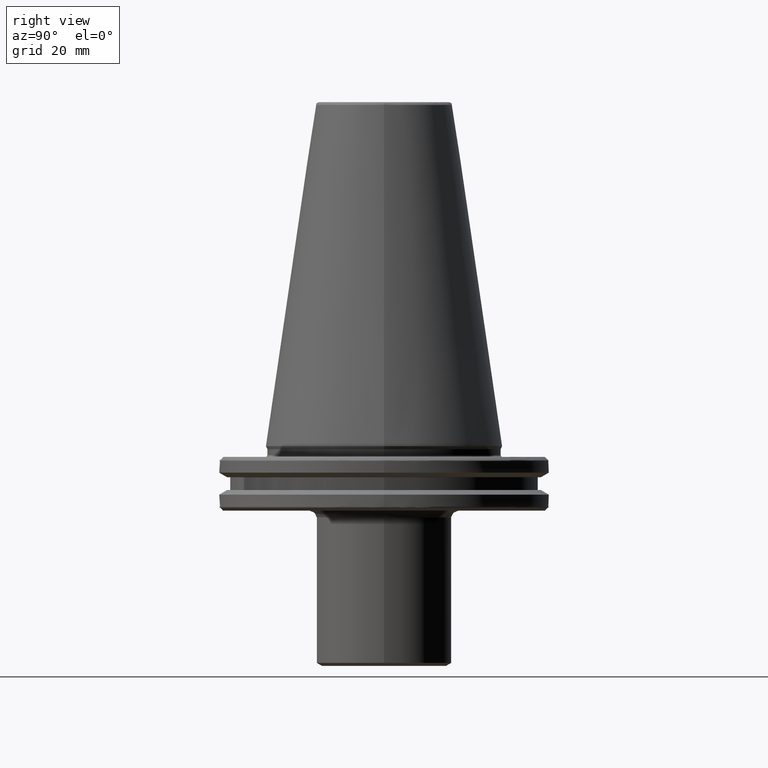
[diagram: clean part render]
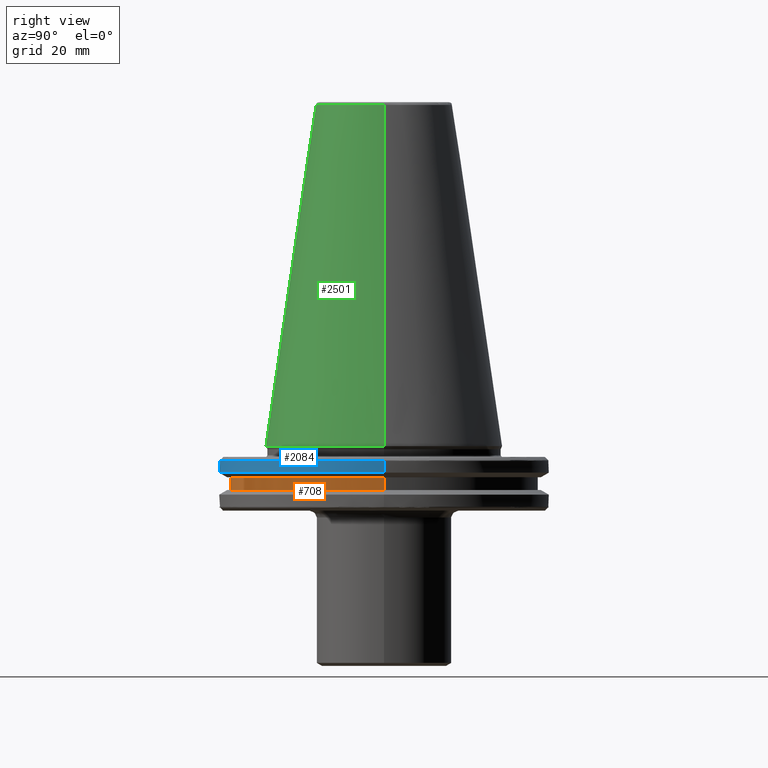
[diagram: same view with three faces highlighted in distinct colors, each labeled with its STEP entity id]
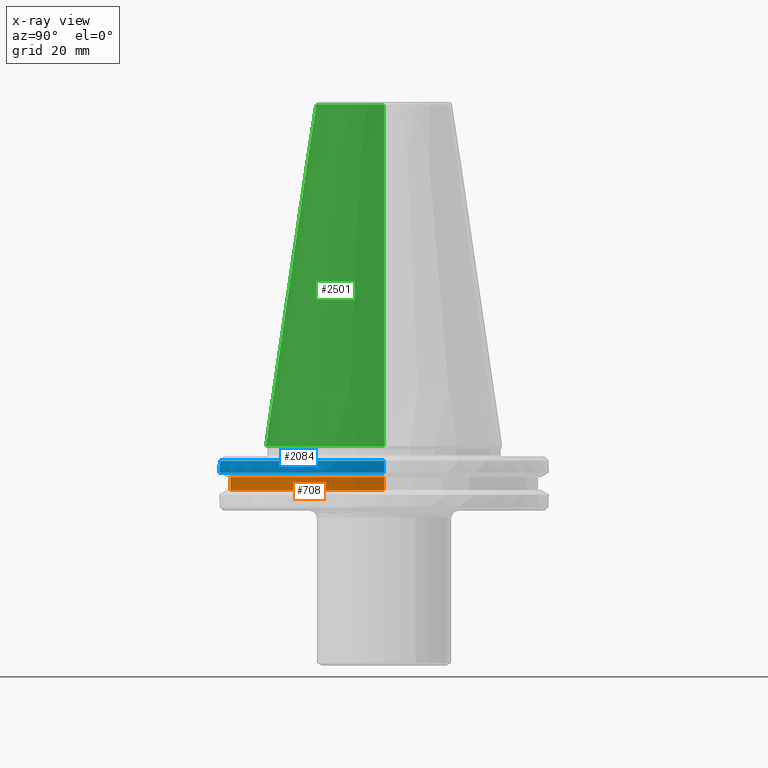
[diagram: x-ray of the same camera — body ghosted, the three highlighted faces saturated]
A machine part, right view with three faces highlighted in distinct colors.
The next image is the same camera in x-ray (body ghosted, the three faces saturated) — at least one of them is partly hidden behind the body in this view.
Their STEP definitions:

[orange] entity #708 — the highlighted cylindrical surface (partial cylindrical patch) has radius 45.5 mm, axis along (0, 0, 1).
#2 = AXIS2_PLACEMENT_3D ( 'NONE', #1852, #1810, #2771 ) ;
#88 = DIRECTION ( 'NONE',  ( 1.000000000000000000, 0.0000000000000000000, 0.0000000000000000000 ) ) ;
#89 = DIRECTION ( 'NONE',  ( -0.0000000000000000000, -0.0000000000000000000, -1.000000000000000000 ) ) ;
#92 = CARTESIAN_POINT ( 'NONE',  ( 0.0000000000000000000, 0.0000000000000000000, -9.199999999999999300 ) ) ;
#139 = VERTEX_POINT ( 'NONE', #2626 ) ;
#150 = VERTEX_POINT ( 'NONE', #2255 ) ;
#307 = DIRECTION ( 'NONE',  ( 0.0000000000000000000, 0.0000000000000000000, 1.000000000000000000 ) ) ;
#310 = DIRECTION ( 'NONE',  ( 1.000000000000000000, 0.0000000000000000000, 0.0000000000000000000 ) ) ;
#346 = CARTESIAN_POINT ( 'NONE',  ( 0.0000000000000000000, 0.0000000000000000000, 113.5216080541959500 ) ) ;
#371 = VERTEX_POINT ( 'NONE', #1117 ) ;
#418 = CIRCLE ( 'NONE', #2, 45.50000000000000000 ) ;
#498 = VECTOR ( 'NONE', #1760, 1000.000000000000000 ) ;
#531 = LINE ( 'NONE', #2168, #498 ) ;
#708 = ADVANCED_FACE ( 'NONE', ( #2307 ), #2079, .T. ) ;
#730 = LINE ( 'NONE', #2418, #2721 ) ;
#879 = EDGE_CURVE ( 'NONE', #1691, #150, #891, .T. ) ;
#891 = CIRCLE ( 'NONE', #2807, 45.50000000000000000 ) ;
#1105 = ORIENTED_EDGE ( 'NONE', *, *, #879, .T. ) ;
#1117 = CARTESIAN_POINT ( 'NONE',  ( -45.50000000000000000, 5.572142936120457100E-015, -13.00000000000001100 ) ) ;
#1120 = EDGE_CURVE ( 'NONE', #371, #139, #418, .T. ) ;
#1691 = VERTEX_POINT ( 'NONE', #2134 ) ;
#1760 = DIRECTION ( 'NONE',  ( 0.0000000000000000000, 0.0000000000000000000, 1.000000000000000000 ) ) ;
#1810 = DIRECTION ( 'NONE',  ( 0.0000000000000000000, 0.0000000000000000000, 1.000000000000000000 ) ) ;
#1852 = CARTESIAN_POINT ( 'NONE',  ( 0.0000000000000000000, 0.0000000000000000000, -13.00000000000001100 ) ) ;
#1985 = EDGE_CURVE ( 'NONE', #371, #150, #730, .T. ) ;
#2079 = CYLINDRICAL_SURFACE ( 'NONE', #2426, 45.50000000000000000 ) ;
#2113 = ORIENTED_EDGE ( 'NONE', *, *, #1120, .T. ) ;
#2134 = CARTESIAN_POINT ( 'NONE',  ( 45.50000000000000000, 0.0000000000000000000, -9.199999999999999300 ) ) ;
#2144 = ORIENTED_EDGE ( 'NONE', *, *, #1985, .F. ) ;
#2168 = CARTESIAN_POINT ( 'NONE',  ( 45.50000000000000000, 0.0000000000000000000, 113.5216080541959500 ) ) ;
#2255 = CARTESIAN_POINT ( 'NONE',  ( -45.50000000000000000, 5.572142936120457100E-015, -9.199999999999999300 ) ) ;
#2307 = FACE_OUTER_BOUND ( 'NONE', #2799, .T. ) ;
#2418 = CARTESIAN_POINT ( 'NONE',  ( -45.50000000000000000, 5.572142936120457100E-015, 113.5216080541959500 ) ) ;
#2426 = AXIS2_PLACEMENT_3D ( 'NONE', #346, #307, #310 ) ;
#2428 = ORIENTED_EDGE ( 'NONE', *, *, #2947, .T. ) ;
#2443 = DIRECTION ( 'NONE',  ( 0.0000000000000000000, 0.0000000000000000000, 1.000000000000000000 ) ) ;
#2626 = CARTESIAN_POINT ( 'NONE',  ( 45.50000000000000000, 0.0000000000000000000, -13.00000000000001100 ) ) ;
#2721 = VECTOR ( 'NONE', #2443, 1000.000000000000000 ) ;
#2771 = DIRECTION ( 'NONE',  ( 1.000000000000000000, 0.0000000000000000000, 0.0000000000000000000 ) ) ;
#2799 = EDGE_LOOP ( 'NONE', ( #2144, #2113, #2428, #1105 ) ) ;
#2807 = AXIS2_PLACEMENT_3D ( 'NONE', #92, #89, #88 ) ;
#2947 = EDGE_CURVE ( 'NONE', #139, #1691, #531, .T. ) ;

[blue] entity #2084 — the highlighted cylindrical surface (partial cylindrical patch) has radius 48.75 mm, axis along (0, 0, 1).
#6 = DIRECTION ( 'NONE',  ( 1.000000000000000000, 0.0000000000000000000, 0.0000000000000000000 ) ) ;
#11 = CARTESIAN_POINT ( 'NONE',  ( 46.87302845420869300, -13.39707817141269600, -4.365685424949236700 ) ) ;
#69 = EDGE_LOOP ( 'NONE', ( #247, #2813, #2708, #2181, #243, #2073 ) ) ;
#177 = VECTOR ( 'NONE', #2520, 1000.000000000000000 ) ;
#243 = ORIENTED_EDGE ( 'NONE', *, *, #2888, .F. ) ;
#247 = ORIENTED_EDGE ( 'NONE', *, *, #2447, .F. ) ;
#255 = EDGE_CURVE ( 'NONE', #2257, #963, #2347, .T. ) ;
#266 = DIRECTION ( 'NONE',  ( -1.000000000000000000, 0.0000000000000000000, 0.0000000000000000000 ) ) ;
#269 = DIRECTION ( 'NONE',  ( -0.0000000000000000000, -0.0000000000000000000, -1.000000000000000000 ) ) ;
#271 = CARTESIAN_POINT ( 'NONE',  ( 0.0000000000000000000, 0.0000000000000000000, -4.365685424949236700 ) ) ;
#347 = EDGE_CURVE ( 'NONE', #1919, #2257, #597, .T. ) ;
#364 = CARTESIAN_POINT ( 'NONE',  ( -48.75000000000000000, 5.970153145843347100E-015, 113.5216080541959500 ) ) ;
#400 = CARTESIAN_POINT ( 'NONE',  ( 0.0000000000000000000, 0.0000000000000000000, 113.5216080541959500 ) ) ;
#453 = AXIS2_PLACEMENT_3D ( 'NONE', #1152, #1149, #1146 ) ;
#501 = CARTESIAN_POINT ( 'NONE',  ( -48.75000000000000000, 5.970153145843347100E-015, -7.852404735808352000 ) ) ;
#507 = AXIS2_PLACEMENT_3D ( 'NONE', #271, #269, #266 ) ;
#597 = CIRCLE ( 'NONE', #453, 48.75000000000000000 ) ;
#683 = CIRCLE ( 'NONE', #2199, 48.75000000000000000 ) ;
#712 = EDGE_CURVE ( 'NONE', #963, #938, #1363, .T. ) ;
#843 = FACE_OUTER_BOUND ( 'NONE', #69, .T. ) ;
#926 = CARTESIAN_POINT ( 'NONE',  ( 0.0000000000000000000, 0.0000000000000000000, -4.365685424949240300 ) ) ;
#938 = VERTEX_POINT ( 'NONE', #11 ) ;
#963 = VERTEX_POINT ( 'NONE', #1258 ) ;
#1001 = AXIS2_PLACEMENT_3D ( 'NONE', #400, #1655, #6 ) ;
#1004 = EDGE_CURVE ( 'NONE', #2010, #1666, #683, .T. ) ;
#1065 = CYLINDRICAL_SURFACE ( 'NONE', #1001, 48.75000000000000000 ) ;
#1146 = DIRECTION ( 'NONE',  ( 1.000000000000000000, 0.0000000000000000000, 0.0000000000000000000 ) ) ;
#1149 = DIRECTION ( 'NONE',  ( 0.0000000000000000000, 0.0000000000000000000, 1.000000000000000000 ) ) ;
#1152 = CARTESIAN_POINT ( 'NONE',  ( 0.0000000000000000000, 0.0000000000000000000, -7.852404735808352000 ) ) ;
#1258 = CARTESIAN_POINT ( 'NONE',  ( 48.75000000000000000, 0.0000000000000000000, -4.365685424949236700 ) ) ;
#1317 = CARTESIAN_POINT ( 'NONE',  ( 0.0000000000000000000, 0.0000000000000000000, -4.365685424949236700 ) ) ;
#1361 = LINE ( 'NONE', #364, #177 ) ;
#1363 = CIRCLE ( 'NONE', #507, 48.75000000000000000 ) ;
#1576 = DIRECTION ( 'NONE',  ( 0.0000000000000000000, 0.0000000000000000000, 1.000000000000000000 ) ) ;
#1655 = DIRECTION ( 'NONE',  ( 0.0000000000000000000, 0.0000000000000000000, 1.000000000000000000 ) ) ;
#1666 = VERTEX_POINT ( 'NONE', #1888 ) ;
#1807 = AXIS2_PLACEMENT_3D ( 'NONE', #926, #2903, #3039 ) ;
#1888 = CARTESIAN_POINT ( 'NONE',  ( -48.75000000000000000, 5.970153145843347100E-015, -4.365685424949236700 ) ) ;
#1919 = VERTEX_POINT ( 'NONE', #501 ) ;
#2010 = VERTEX_POINT ( 'NONE', #2370 ) ;
#2073 = ORIENTED_EDGE ( 'NONE', *, *, #1004, .T. ) ;
#2081 = CIRCLE ( 'NONE', #1807, 48.75000000000000000 ) ;
#2084 = ADVANCED_FACE ( 'NONE', ( #843 ), #1065, .T. ) ;
#2181 = ORIENTED_EDGE ( 'NONE', *, *, #712, .T. ) ;
#2199 = AXIS2_PLACEMENT_3D ( 'NONE', #1317, #2827, #2310 ) ;
#2257 = VERTEX_POINT ( 'NONE', #2902 ) ;
#2310 = DIRECTION ( 'NONE',  ( -1.000000000000000000, 0.0000000000000000000, 0.0000000000000000000 ) ) ;
#2347 = LINE ( 'NONE', #2757, #2875 ) ;
#2370 = CARTESIAN_POINT ( 'NONE',  ( -46.83796378645139000, -13.51915856623735300, -4.365685424949236700 ) ) ;
#2447 = EDGE_CURVE ( 'NONE', #1919, #1666, #1361, .T. ) ;
#2520 = DIRECTION ( 'NONE',  ( 0.0000000000000000000, 0.0000000000000000000, 1.000000000000000000 ) ) ;
#2708 = ORIENTED_EDGE ( 'NONE', *, *, #255, .T. ) ;
#2757 = CARTESIAN_POINT ( 'NONE',  ( 48.75000000000000000, 0.0000000000000000000, 113.5216080541959500 ) ) ;
#2813 = ORIENTED_EDGE ( 'NONE', *, *, #347, .T. ) ;
#2827 = DIRECTION ( 'NONE',  ( -0.0000000000000000000, -0.0000000000000000000, -1.000000000000000000 ) ) ;
#2875 = VECTOR ( 'NONE', #1576, 1000.000000000000000 ) ;
#2888 = EDGE_CURVE ( 'NONE', #2010, #938, #2081, .T. ) ;
#2902 = CARTESIAN_POINT ( 'NONE',  ( 48.75000000000000000, 0.0000000000000000000, -7.852404735808352000 ) ) ;
#2903 = DIRECTION ( 'NONE',  ( 0.0000000000000000000, 0.0000000000000000000, 1.000000000000000000 ) ) ;
#3039 = DIRECTION ( 'NONE',  ( 1.000000000000000000, 0.0000000000000000000, 0.0000000000000000000 ) ) ;

[green] entity #2501 — the highlighted conical surface has half-angle 8.297 deg.
#33 = EDGE_CURVE ( 'NONE', #520, #2191, #686, .T. ) ;
#259 = ORIENTED_EDGE ( 'NONE', *, *, #286, .T. ) ;
#286 = EDGE_CURVE ( 'NONE', #2788, #2191, #836, .T. ) ;
#489 = EDGE_CURVE ( 'NONE', #579, #2788, #1198, .T. ) ;
#515 = CARTESIAN_POINT ( 'NONE',  ( -20.21110778703758000, 0.0000000000000000000, 100.8943082272673000 ) ) ;
#520 = VERTEX_POINT ( 'NONE', #526 ) ;
#526 = CARTESIAN_POINT ( 'NONE',  ( 20.21110778703758000, 3.376112895941951000E-015, 100.8943082272673000 ) ) ;
#579 = VERTEX_POINT ( 'NONE', #515 ) ;
#584 = CARTESIAN_POINT ( 'NONE',  ( -34.92499999999999700, 0.0000000000000000000, -1.387778780781445700E-014 ) ) ;
#678 = ORIENTED_EDGE ( 'NONE', *, *, #33, .F. ) ;
#686 = LINE ( 'NONE', #2101, #1478 ) ;
#695 = ORIENTED_EDGE ( 'NONE', *, *, #489, .T. ) ;
#751 = CARTESIAN_POINT ( 'NONE',  ( -34.92500000000000400, 4.277078946022131700E-015, 0.0000000000000000000 ) ) ;
#782 = CARTESIAN_POINT ( 'NONE',  ( 34.92500000000000400, 0.0000000000000000000, 0.0000000000000000000 ) ) ;
#836 = CIRCLE ( 'NONE', #2455, 34.92499999999999700 ) ;
#848 = CIRCLE ( 'NONE', #1319, 20.21110778703758000 ) ;
#854 = VECTOR ( 'NONE', #982, 1000.000000000000000 ) ;
#881 = CARTESIAN_POINT ( 'NONE',  ( 0.0000000000000000000, 0.0000000000000000000, 100.8943082272673000 ) ) ;
#889 = CARTESIAN_POINT ( 'NONE',  ( 0.0000000000000000000, 0.0000000000000000000, -1.387778780781445700E-014 ) ) ;
#982 = DIRECTION ( 'NONE',  ( -0.1443082272673069400, 0.0000000000000000000, -0.9895327864921743500 ) ) ;
#1189 = DIRECTION ( 'NONE',  ( -1.000000000000000000, 0.0000000000000000000, 0.0000000000000000000 ) ) ;
#1191 = DIRECTION ( 'NONE',  ( -0.0000000000000000000, -0.0000000000000000000, 1.000000000000000000 ) ) ;
#1194 = CARTESIAN_POINT ( 'NONE',  ( 0.0000000000000000000, 0.0000000000000000000, 0.0000000000000000000 ) ) ;
#1198 = LINE ( 'NONE', #584, #854 ) ;
#1319 = AXIS2_PLACEMENT_3D ( 'NONE', #881, #3022, #2467 ) ;
#1350 = DIRECTION ( 'NONE',  ( 0.0000000000000000000, 0.0000000000000000000, -1.000000000000000000 ) ) ;
#1406 = FACE_OUTER_BOUND ( 'NONE', #2953, .T. ) ;
#1478 = VECTOR ( 'NONE', #2107, 1000.000000000000000 ) ;
#2076 = EDGE_CURVE ( 'NONE', #520, #579, #848, .T. ) ;
#2101 = CARTESIAN_POINT ( 'NONE',  ( 34.92499999999999700, 4.277078946022130900E-015, -1.387778780781445700E-014 ) ) ;
#2107 = DIRECTION ( 'NONE',  ( 0.1443082272673069400, 1.767266086135362400E-017, -0.9895327864921743500 ) ) ;
#2191 = VERTEX_POINT ( 'NONE', #782 ) ;
#2321 = AXIS2_PLACEMENT_3D ( 'NONE', #889, #1350, #2959 ) ;
#2455 = AXIS2_PLACEMENT_3D ( 'NONE', #1194, #1191, #1189 ) ;
#2467 = DIRECTION ( 'NONE',  ( -1.000000000000000000, 0.0000000000000000000, 0.0000000000000000000 ) ) ;
#2501 = ADVANCED_FACE ( 'NONE', ( #1406 ), #2848, .T. ) ;
#2788 = VERTEX_POINT ( 'NONE', #751 ) ;
#2848 = CONICAL_SURFACE ( 'NONE', #2321, 34.92499999999999700, 0.1448138465474189400 ) ;
#2924 = ORIENTED_EDGE ( 'NONE', *, *, #2076, .T. ) ;
#2953 = EDGE_LOOP ( 'NONE', ( #678, #2924, #695, #259 ) ) ;
#2959 = DIRECTION ( 'NONE',  ( -1.000000000000000000, 0.0000000000000000000, 0.0000000000000000000 ) ) ;
#3022 = DIRECTION ( 'NONE',  ( 0.0000000000000000000, 0.0000000000000000000, -1.000000000000000000 ) ) ;